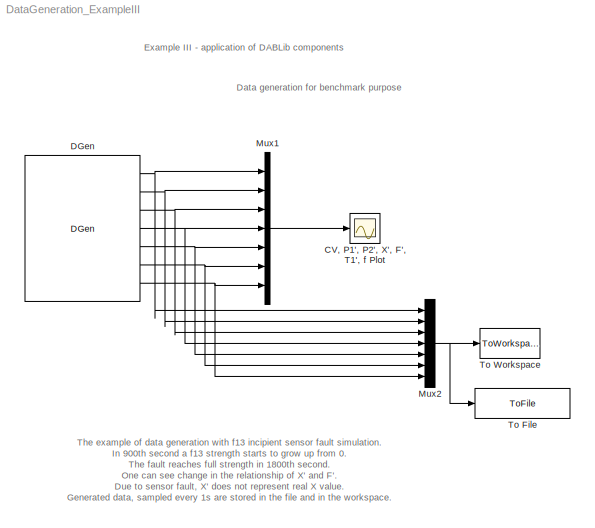
MODEL DataGeneration_ExampleIII
KIND model
CONFIG AbsTol = 1e-6
CONFIG FixedStep = 0.0025
CONFIG MaxStep = auto
CONFIG RelTol = 1e-3
CONFIG Solver = ode5
CONFIG StartTime = 0.0
CONFIG StopTime = 85500
BLOCK [Scope] CV, P1', P2', X', F', T1', f Plot
  Decimation = 1
  Floating = off
  Grid = on
  LimitMaxRows = on
  MaxRows = 3600
  Ports = [1, 0, 0, 0, 0]
  SampleInput = on
  SampleTime = 1
  SaveName = ScopeData
  SaveToWorkspace = off
  TickLabels = on
  TimeRange = 2100
  YMax = 1
  YMin = 0
  ZoomMode = xonly
BLOCK [Reference] DGen  REF=DABLib/DGen
  FSel = f13 - Rod displacement sensor fault
  FType = Incipient
  Ports = [0, 7, 0, 0, 0]
  SourceBlock = DABLib/DGen
  SourceType = Benchmark data generator
BLOCK [Mux] Mux1
  Inputs = 7
  Ports = [7, 1, 0, 0, 0]
BLOCK [Mux] Mux2
  Inputs = 7
  Ports = [7, 1, 0, 0, 0]
BLOCK [ToFile] To File
  Decimation = 1
  Filename = actuator_data.mat
  MatrixName = actuator_data
  SampleTime = 1
BLOCK [ToWorkspace] To Workspace
  Buffer = inf
  Decimation = 1
  SampleTime = 1
  VariableName = valve_data
NET DGen:1 -> Mux1:1, Mux2:1
NET DGen:2 -> Mux1:2, Mux2:2
NET DGen:3 -> Mux1:3, Mux2:3
NET DGen:4 -> Mux1:4, Mux2:4
NET DGen:5 -> Mux1:5, Mux2:5
NET DGen:6 -> Mux1:6, Mux2:6
NET DGen:7 -> Mux1:7, Mux2:7
LINE Mux1:1 -> CV, P1', P2', X', F', T1', f Plot:1
NET Mux2:1 -> To File:1, To Workspace:1
note: NET lines group one-source signal fan-out (src -> all destinations, sorted); 1:1 wires keep LINE
